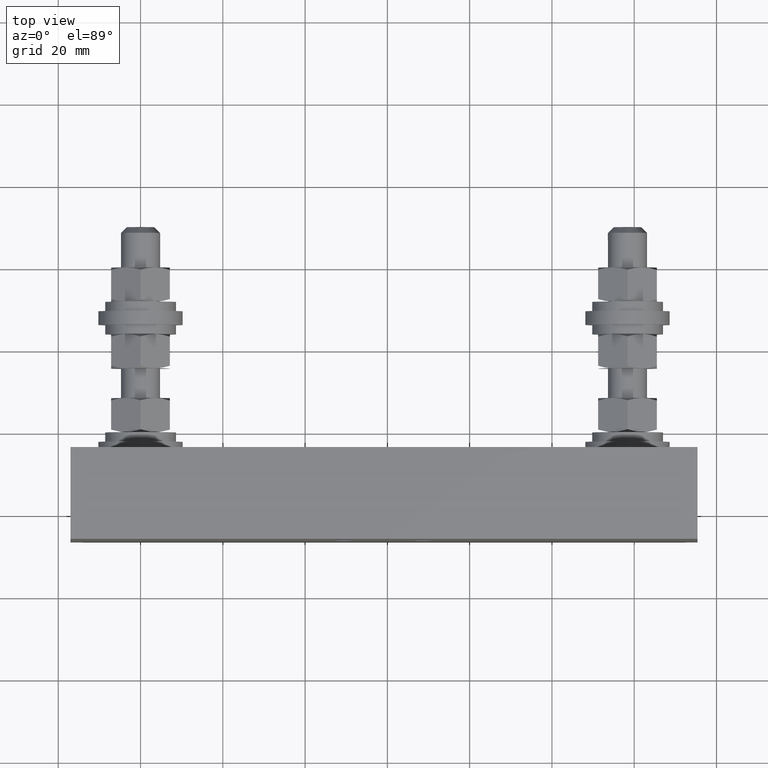
[diagram: clean part render]
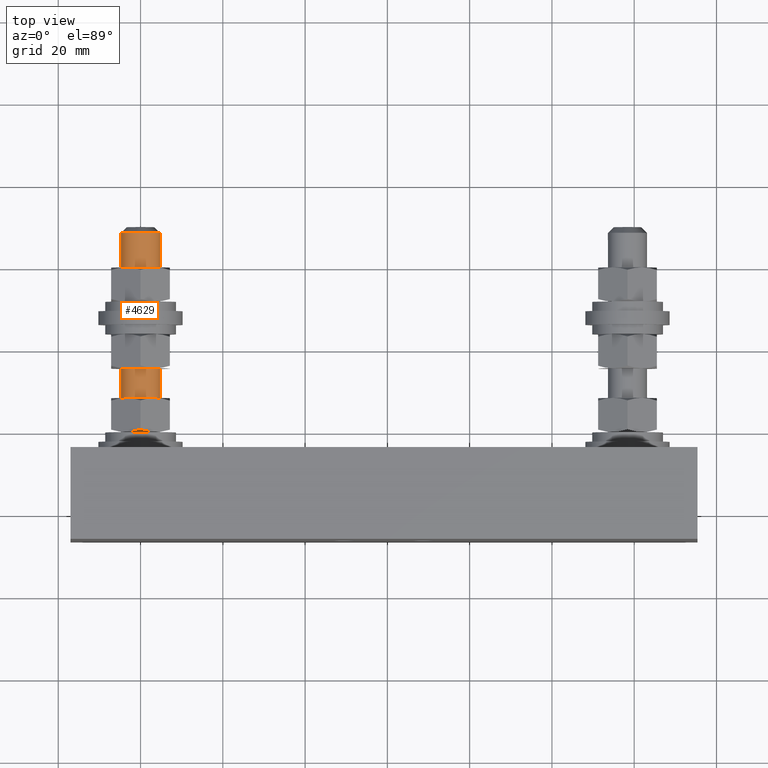
[diagram: same view with one face highlighted and labeled with its STEP entity id]
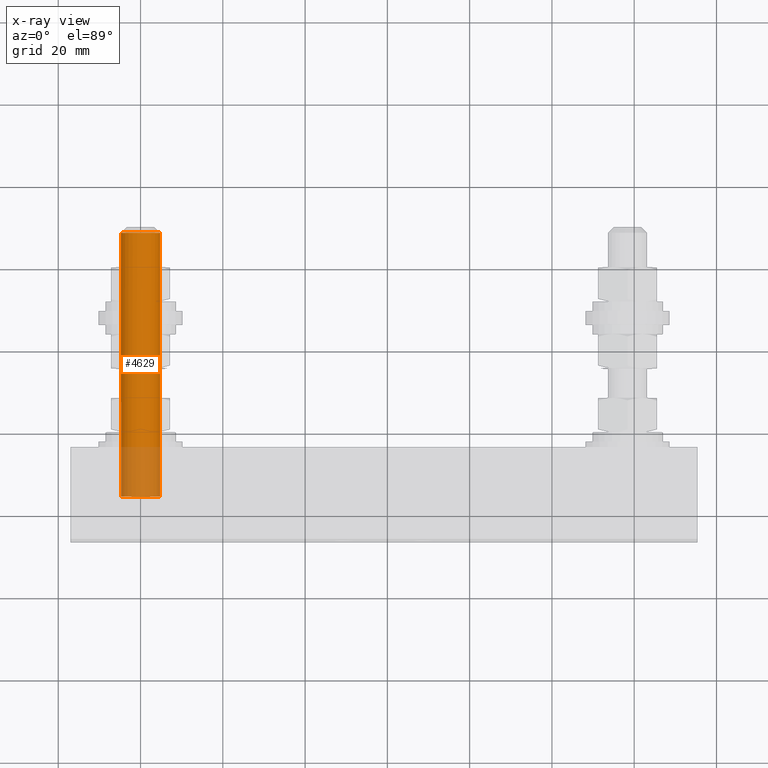
[diagram: x-ray of the same camera — body ghosted, the highlighted face saturated]
A machine part, top view. The second image highlights one B-rep face of the part: STEP entity #4629.
The next image is the same camera in x-ray: the body ghosted, the highlighted face saturated — about 19% of this face is hidden behind the body in this view.
In plain terms, the highlighted cylindrical surface (bore or boss wall) has radius 4.7625 mm, axis along (-0, -1, -0).
Its self-contained STEP definition (entity closure, byte-faithful):
#410 = CIRCLE ( 'NONE', #2386, 0.1875000000000001400 ) ;
#771 = AXIS2_PLACEMENT_3D ( 'NONE', #5535, #1942, #1967 ) ;
#787 = CIRCLE ( 'NONE', #2556, 0.1875000000000000300 ) ;
#794 = VERTEX_POINT ( 'NONE', #5321 ) ;
#1219 = EDGE_CURVE ( 'NONE', #794, #794, #410, .T. ) ;
#1301 = FACE_OUTER_BOUND ( 'NONE', #1907, .T. ) ;
#1314 = DIRECTION ( 'NONE',  ( 5.551115123125782700E-017, 0.0000000000000000000, -1.000000000000000000 ) ) ;
#1836 = CARTESIAN_POINT ( 'NONE',  ( -5.204170427930459800E-018, 0.3318750000000001400, -2.693434729919641800E-030 ) ) ;
#1907 = EDGE_LOOP ( 'NONE', ( #3089 ) ) ;
#1939 = CYLINDRICAL_SURFACE ( 'NONE', #771, 0.1875000000000001400 ) ;
#1942 = DIRECTION ( 'NONE',  ( -9.678129627427203600E-031, -1.000000000000000000, -7.805279981897446200E-017 ) ) ;
#1967 = DIRECTION ( 'NONE',  ( 5.551115123125782700E-017, 0.0000000000000000000, -1.000000000000000000 ) ) ;
#2386 = AXIS2_PLACEMENT_3D ( 'NONE', #5845, #6732, #1314 ) ;
#2442 = DIRECTION ( 'NONE',  ( 1.000000000000000000, 0.0000000000000000000, 5.551115123125782700E-017 ) ) ;
#2556 = AXIS2_PLACEMENT_3D ( 'NONE', #1836, #6055, #2442 ) ;
#3005 = CARTESIAN_POINT ( 'NONE',  ( 0.1875000000000000300, 0.3318750000000001400, 1.040834085585814900E-017 ) ) ;
#3089 = ORIENTED_EDGE ( 'NONE', *, *, #6225, .F. ) ;
#4290 = FACE_OUTER_BOUND ( 'NONE', #6443, .T. ) ;
#4629 = ADVANCED_FACE ( 'NONE', ( #4290, #1301 ), #1939, .T. ) ;
#5321 = CARTESIAN_POINT ( 'NONE',  ( 5.204170427927935300E-018, -2.191249999999999700, -0.1875000000000001100 ) ) ;
#5535 = CARTESIAN_POINT ( 'NONE',  ( -5.204170427932959700E-018, -2.238124999999999300, 3.414809992081220800E-017 ) ) ;
#5804 = ORIENTED_EDGE ( 'NONE', *, *, #1219, .T. ) ;
#5845 = CARTESIAN_POINT ( 'NONE',  ( -5.204170427932915000E-018, -2.191249999999999700, 3.780682491232658700E-017 ) ) ;
#5866 = VERTEX_POINT ( 'NONE', #3005 ) ;
#6055 = DIRECTION ( 'NONE',  ( 9.721457635174948600E-031, 1.000000000000000000, -4.518854475494579400E-030 ) ) ;
#6225 = EDGE_CURVE ( 'NONE', #5866, #5866, #787, .T. ) ;
#6443 = EDGE_LOOP ( 'NONE', ( #5804 ) ) ;
#6732 = DIRECTION ( 'NONE',  ( 9.678129627427201900E-031, 1.000000000000000000, 7.805279981897436400E-017 ) ) ;